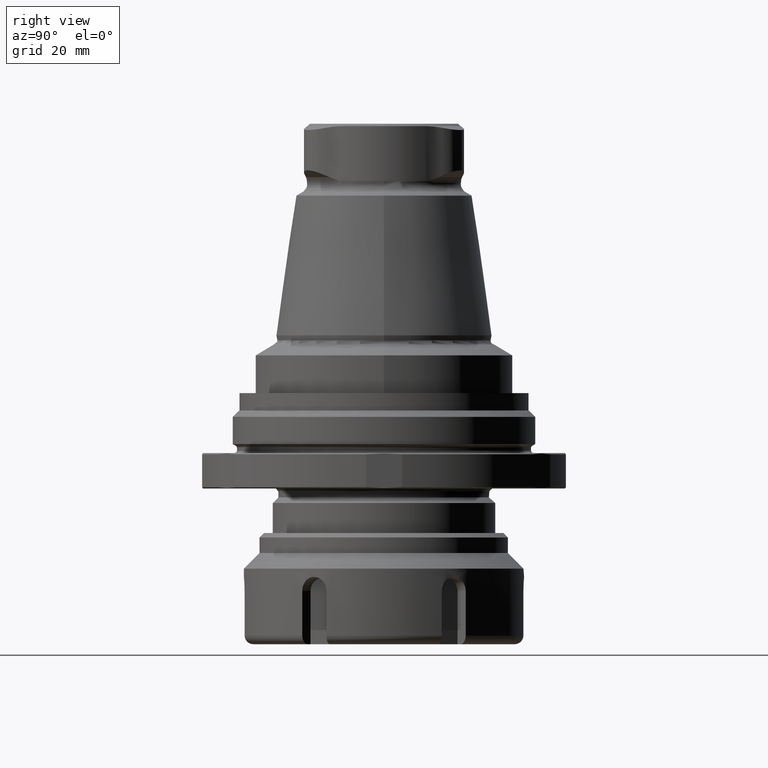
[diagram: clean part render]
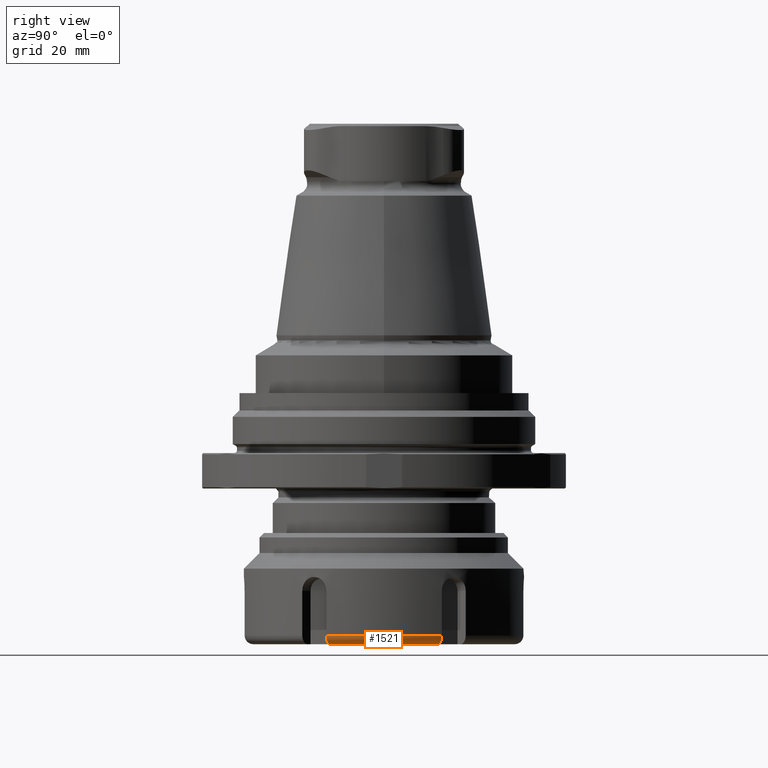
[diagram: same view with one face highlighted and labeled with its STEP entity id]
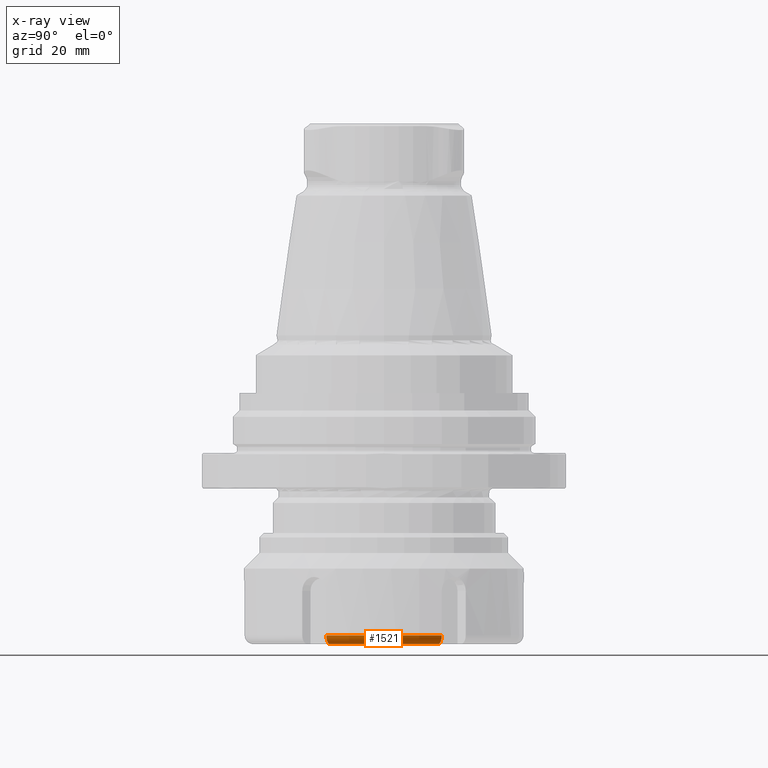
[diagram: x-ray of the same camera — body ghosted, the highlighted face saturated]
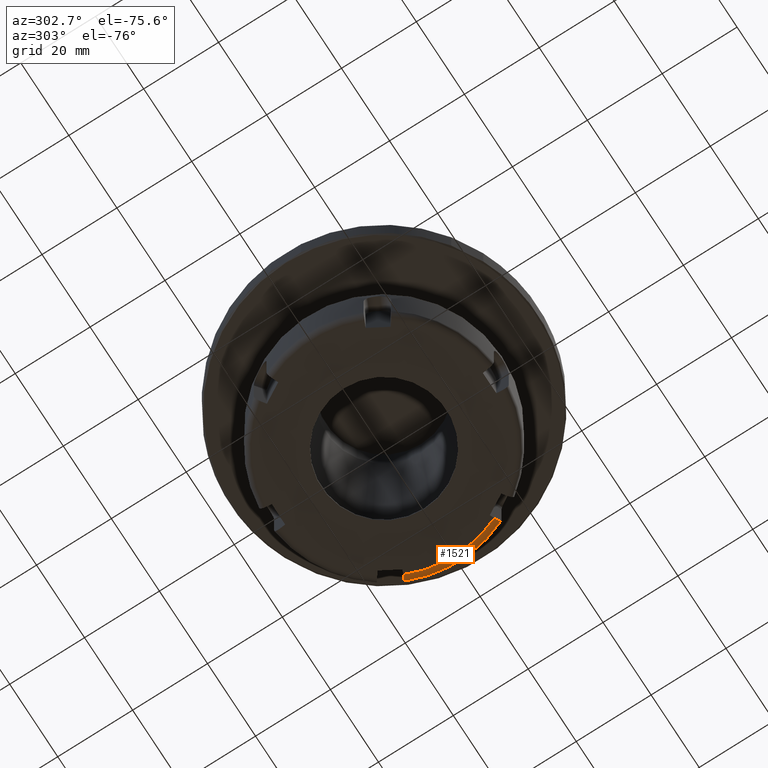
[diagram: same view with one face highlighted and labeled with its STEP entity id]
A machine part, right view. The second image highlights one B-rep face of the part: STEP entity #1521.
The next image is the same camera in x-ray: the body ghosted, the highlighted face saturated — about 0% of this face is hidden behind the body in this view.
A second angle (auxiliary view) of the same face is appended — the face is thin or edge-on in the first view.
In plain terms, the highlighted toroidal blend (fillet) surface has major radius 29.5006 mm and minor (blend) radius 2 mm.
Its self-contained STEP definition (entity closure, byte-faithful):
#437=ORIENTED_EDGE('',*,*,#827,.F.);
#438=ORIENTED_EDGE('',*,*,#829,.T.);
#439=ORIENTED_EDGE('',*,*,#830,.F.);
#440=ORIENTED_EDGE('',*,*,#792,.F.);
#792=EDGE_CURVE('',#1006,#1007,#1141,.T.);
#827=EDGE_CURVE('',#1026,#1006,#1154,.F.);
#829=EDGE_CURVE('',#1026,#1027,#1155,.T.);
#830=EDGE_CURVE('',#1007,#1027,#1156,.F.);
#1006=VERTEX_POINT('',#2347);
#1007=VERTEX_POINT('',#2349);
#1026=VERTEX_POINT('',#2435);
#1027=VERTEX_POINT('',#2439);
#1141=CIRCLE('',#1636,29.5506250976868);
#1154=CIRCLE('',#1663,2.);
#1155=CIRCLE('',#1665,31.5);
#1156=CIRCLE('',#1666,2.);
#1246=EDGE_LOOP('',(#437,#438,#439,#440));
#1381=FACE_BOUND('',#1246,.T.);
#1488=TOROIDAL_SURFACE('',#1664,29.5006250976868,2.);
#1521=ADVANCED_FACE('',(#1381),#1488,.T.);
#1636=AXIS2_PLACEMENT_3D('',#2348,#1879,#1880);
#1663=AXIS2_PLACEMENT_3D('',#2434,#1952,#1953);
#1664=AXIS2_PLACEMENT_3D('',#2437,#1955,#1956);
#1665=AXIS2_PLACEMENT_3D('',#2438,#1957,#1958);
#1666=AXIS2_PLACEMENT_3D('',#2440,#1959,#1960);
#1879=DIRECTION('',(0.,0.,-1.));
#1880=DIRECTION('',(4.44089209850063E-16,-1.,0.));
#1952=DIRECTION('',(0.411985828885106,-0.911190252800068,0.));
#1953=DIRECTION('',(0.911190252800068,0.411985828885106,0.));
#1955=DIRECTION('',(0.,0.,-1.));
#1956=DIRECTION('',(4.44089209850063E-16,-1.,0.));
#1957=DIRECTION('',(0.,0.,-1.));
#1958=DIRECTION('',(4.44089209850063E-16,-1.,0.));
#1959=DIRECTION('',(0.411985828885105,0.911190252800068,0.));
#1960=DIRECTION('',(-0.911190252800069,0.411985828885105,0.));
#2347=CARTESIAN_POINT('',(26.9262415531613,12.1744387749435,-44.));
#2348=CARTESIAN_POINT('',(0.,0.,-44.));
#2349=CARTESIAN_POINT('',(26.9262415531613,-12.1744387749435,-44.));
#2434=CARTESIAN_POINT('',(26.8806820405213,12.1538394834992,-42.0006250976868));
#2435=CARTESIAN_POINT('',(28.7024929632022,12.9775536098808,-42.0506250976869));
#2437=CARTESIAN_POINT('',(0.,0.,-42.0006250976868));
#2438=CARTESIAN_POINT('',(0.,0.,-42.0506250976868));
#2439=CARTESIAN_POINT('',(28.7024929632022,-12.9775536098808,-42.0506250976868));
#2440=CARTESIAN_POINT('',(26.8806820405213,-12.1538394834992,-42.0006250976868));